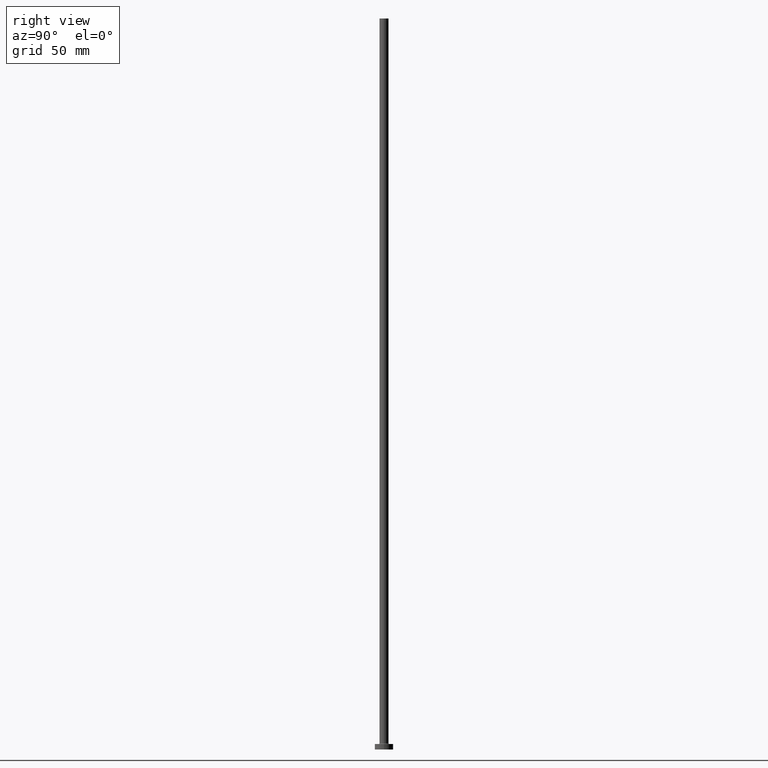
[diagram: clean part render]
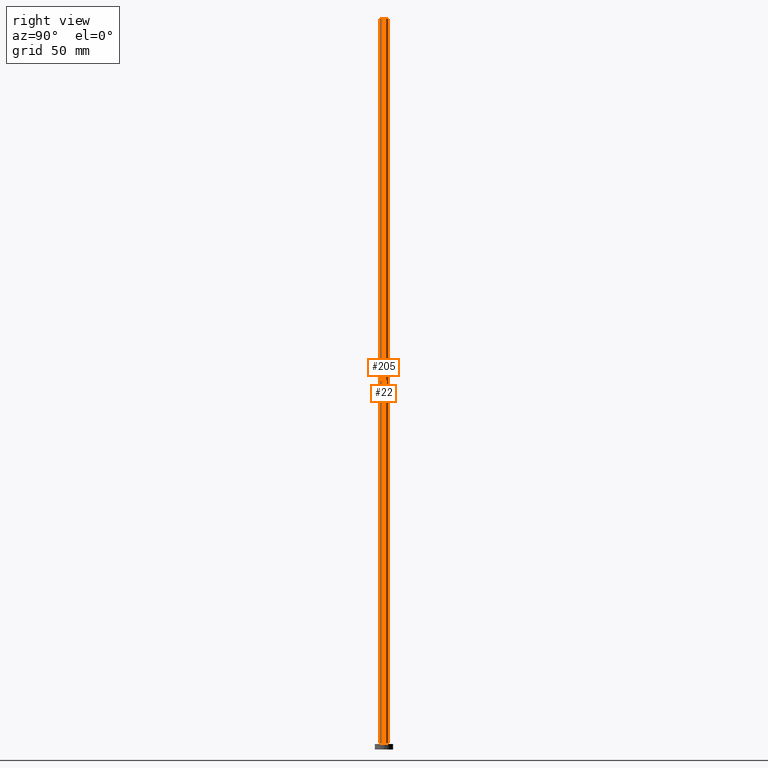
[diagram: same view with one multi-face feature highlighted, each face labeled with its STEP entity id]
A machine part, right view. The highlighted faces form ONE feature: a constant-radius fillet chain: 2 tangent blend faces with common blend radius 2.5 mm. The faces share edges in the B-rep.
Their STEP definitions:
[1] entity #205 (Cylinder):
#19 = DIRECTION ( 'NONE',  ( -0.000000000000000000, -0.000000000000000000, -1.000000000000000000 ) ) ;
#33 = ORIENTED_EDGE ( 'NONE', *, *, #276, .F. ) ;
#47 = AXIS2_PLACEMENT_3D ( 'NONE', #50, #281, #185 ) ;
#48 = AXIS2_PLACEMENT_3D ( 'NONE', #117, #120, #412 ) ;
#50 = CARTESIAN_POINT ( 'NONE',  ( 0.000000000000000000, 0.000000000000000000, 400.0000000000000000 ) ) ;
#73 = VERTEX_POINT ( 'NONE', #171 ) ;
#74 = EDGE_LOOP ( 'NONE', ( #136, #33, #252, #204 ) ) ;
#91 = CYLINDRICAL_SURFACE ( 'NONE', #202, 2.500000000000000000 ) ;
#95 = CARTESIAN_POINT ( 'NONE',  ( -2.500000000000000000, 0.000000000000000000, 400.0000000000000000 ) ) ;
#98 = CARTESIAN_POINT ( 'NONE',  ( 0.000000000000000000, 0.000000000000000000, 400.0000000000000000 ) ) ;
#100 = CIRCLE ( 'NONE', #48, 2.500000000000000000 ) ;
#112 = VERTEX_POINT ( 'NONE', #368 ) ;
#114 = CIRCLE ( 'NONE', #47, 2.500000000000000000 ) ;
#115 = VECTOR ( 'NONE', #435, 1000.000000000000000 ) ;
#117 = CARTESIAN_POINT ( 'NONE',  ( 0.000000000000000000, 0.000000000000000000, 3.300000000000025135 ) ) ;
#120 = DIRECTION ( 'NONE',  ( 0.000000000000000000, 0.000000000000000000, 1.000000000000000000 ) ) ;
#122 = DIRECTION ( 'NONE',  ( -1.000000000000000000, 0.000000000000000000, 0.000000000000000000 ) ) ;
#136 = ORIENTED_EDGE ( 'NONE', *, *, #458, .F. ) ;
#164 = FACE_OUTER_BOUND ( 'NONE', #74, .T. ) ;
#171 = CARTESIAN_POINT ( 'NONE',  ( 2.500000000000000000, 3.061616997868383141E-16, 400.0000000000000000 ) ) ;
#185 = DIRECTION ( 'NONE',  ( 1.000000000000000000, 0.000000000000000000, 0.000000000000000000 ) ) ;
#190 = LINE ( 'NONE', #215, #115 ) ;
#194 = DIRECTION ( 'NONE',  ( -0.000000000000000000, -0.000000000000000000, -1.000000000000000000 ) ) ;
#202 = AXIS2_PLACEMENT_3D ( 'NONE', #98, #194, #122 ) ;
#204 = ORIENTED_EDGE ( 'NONE', *, *, #409, .T. ) ;
#205 = ADVANCED_FACE ( 'NONE', ( #164 ), #91, .T. ) ;
#215 = CARTESIAN_POINT ( 'NONE',  ( 2.500000000000000000, 3.061616997868383141E-16, 400.0000000000000000 ) ) ;
#241 = VERTEX_POINT ( 'NONE', #95 ) ;
#252 = ORIENTED_EDGE ( 'NONE', *, *, #379, .T. ) ;
#253 = LINE ( 'NONE', #404, #295 ) ;
#276 = EDGE_CURVE ( 'NONE', #241, #73, #114, .T. ) ;
#281 = DIRECTION ( 'NONE',  ( 0.000000000000000000, 0.000000000000000000, 1.000000000000000000 ) ) ;
#295 = VECTOR ( 'NONE', #19, 1000.000000000000000 ) ;
#359 = CARTESIAN_POINT ( 'NONE',  ( 2.500000000000000000, 3.061616997868383141E-16, 3.300000000000025135 ) ) ;
#368 = CARTESIAN_POINT ( 'NONE',  ( -2.500000000000000000, 0.000000000000000000, 3.300000000000025135 ) ) ;
#379 = EDGE_CURVE ( 'NONE', #241, #112, #253, .T. ) ;
#404 = CARTESIAN_POINT ( 'NONE',  ( -2.500000000000000000, 0.000000000000000000, 400.0000000000000000 ) ) ;
#409 = EDGE_CURVE ( 'NONE', #112, #438, #100, .T. ) ;
#412 = DIRECTION ( 'NONE',  ( 1.000000000000000000, 0.000000000000000000, 0.000000000000000000 ) ) ;
#435 = DIRECTION ( 'NONE',  ( -0.000000000000000000, -0.000000000000000000, -1.000000000000000000 ) ) ;
#438 = VERTEX_POINT ( 'NONE', #359 ) ;
#458 = EDGE_CURVE ( 'NONE', #73, #438, #190, .T. ) ;
[2] entity #22 (Cylinder):
#19 = DIRECTION ( 'NONE',  ( -0.000000000000000000, -0.000000000000000000, -1.000000000000000000 ) ) ;
#22 = ADVANCED_FACE ( 'NONE', ( #234 ), #387, .T. ) ;
#23 = AXIS2_PLACEMENT_3D ( 'NONE', #175, #82, #145 ) ;
#73 = VERTEX_POINT ( 'NONE', #171 ) ;
#82 = DIRECTION ( 'NONE',  ( 0.000000000000000000, 0.000000000000000000, 1.000000000000000000 ) ) ;
#95 = CARTESIAN_POINT ( 'NONE',  ( -2.500000000000000000, 0.000000000000000000, 400.0000000000000000 ) ) ;
#97 = AXIS2_PLACEMENT_3D ( 'NONE', #451, #338, #195 ) ;
#107 = ORIENTED_EDGE ( 'NONE', *, *, #458, .T. ) ;
#112 = VERTEX_POINT ( 'NONE', #368 ) ;
#115 = VECTOR ( 'NONE', #435, 1000.000000000000000 ) ;
#124 = CIRCLE ( 'NONE', #97, 2.500000000000000000 ) ;
#139 = DIRECTION ( 'NONE',  ( -1.000000000000000000, 0.000000000000000000, 0.000000000000000000 ) ) ;
#145 = DIRECTION ( 'NONE',  ( 1.000000000000000000, 0.000000000000000000, 0.000000000000000000 ) ) ;
#163 = ORIENTED_EDGE ( 'NONE', *, *, #379, .F. ) ;
#171 = CARTESIAN_POINT ( 'NONE',  ( 2.500000000000000000, 3.061616997868383141E-16, 400.0000000000000000 ) ) ;
#175 = CARTESIAN_POINT ( 'NONE',  ( 0.000000000000000000, 0.000000000000000000, 400.0000000000000000 ) ) ;
#184 = ORIENTED_EDGE ( 'NONE', *, *, #388, .T. ) ;
#190 = LINE ( 'NONE', #215, #115 ) ;
#195 = DIRECTION ( 'NONE',  ( 1.000000000000000000, 0.000000000000000000, 0.000000000000000000 ) ) ;
#207 = DIRECTION ( 'NONE',  ( -0.000000000000000000, -0.000000000000000000, -1.000000000000000000 ) ) ;
#215 = CARTESIAN_POINT ( 'NONE',  ( 2.500000000000000000, 3.061616997868383141E-16, 400.0000000000000000 ) ) ;
#226 = CIRCLE ( 'NONE', #23, 2.500000000000000000 ) ;
#234 = FACE_OUTER_BOUND ( 'NONE', #417, .T. ) ;
#241 = VERTEX_POINT ( 'NONE', #95 ) ;
#253 = LINE ( 'NONE', #404, #295 ) ;
#279 = ORIENTED_EDGE ( 'NONE', *, *, #342, .F. ) ;
#291 = CARTESIAN_POINT ( 'NONE',  ( 0.000000000000000000, 0.000000000000000000, 400.0000000000000000 ) ) ;
#295 = VECTOR ( 'NONE', #19, 1000.000000000000000 ) ;
#338 = DIRECTION ( 'NONE',  ( 0.000000000000000000, 0.000000000000000000, 1.000000000000000000 ) ) ;
#342 = EDGE_CURVE ( 'NONE', #73, #241, #226, .T. ) ;
#359 = CARTESIAN_POINT ( 'NONE',  ( 2.500000000000000000, 3.061616997868383141E-16, 3.300000000000025135 ) ) ;
#368 = CARTESIAN_POINT ( 'NONE',  ( -2.500000000000000000, 0.000000000000000000, 3.300000000000025135 ) ) ;
#379 = EDGE_CURVE ( 'NONE', #241, #112, #253, .T. ) ;
#387 = CYLINDRICAL_SURFACE ( 'NONE', #460, 2.500000000000000000 ) ;
#388 = EDGE_CURVE ( 'NONE', #438, #112, #124, .T. ) ;
#404 = CARTESIAN_POINT ( 'NONE',  ( -2.500000000000000000, 0.000000000000000000, 400.0000000000000000 ) ) ;
#417 = EDGE_LOOP ( 'NONE', ( #279, #107, #184, #163 ) ) ;
#435 = DIRECTION ( 'NONE',  ( -0.000000000000000000, -0.000000000000000000, -1.000000000000000000 ) ) ;
#438 = VERTEX_POINT ( 'NONE', #359 ) ;
#451 = CARTESIAN_POINT ( 'NONE',  ( 0.000000000000000000, 0.000000000000000000, 3.300000000000025135 ) ) ;
#458 = EDGE_CURVE ( 'NONE', #73, #438, #190, .T. ) ;
#460 = AXIS2_PLACEMENT_3D ( 'NONE', #291, #207, #139 ) ;